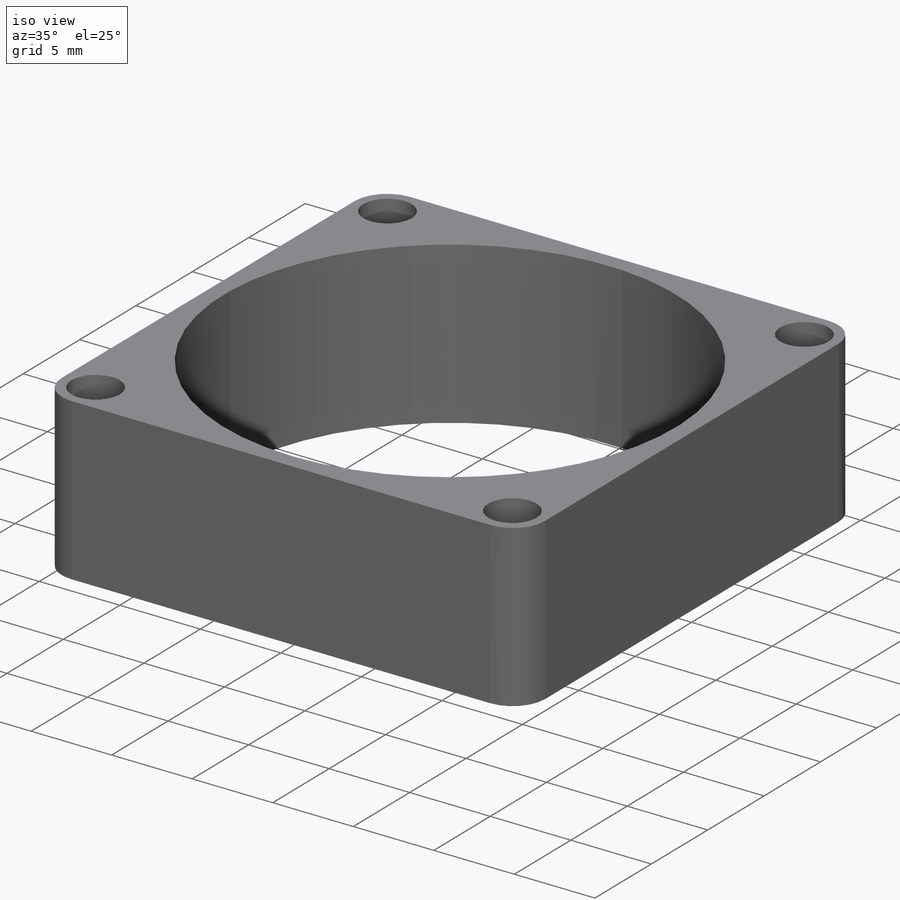
[diagram: iso view]
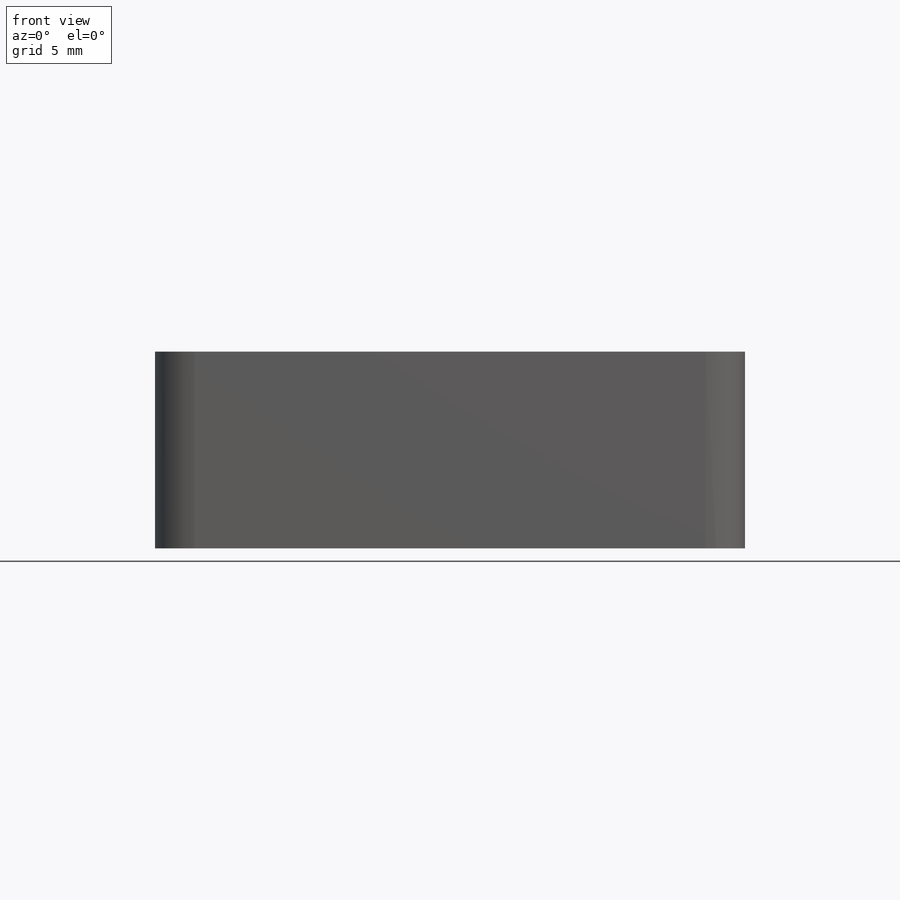
[diagram: front view]
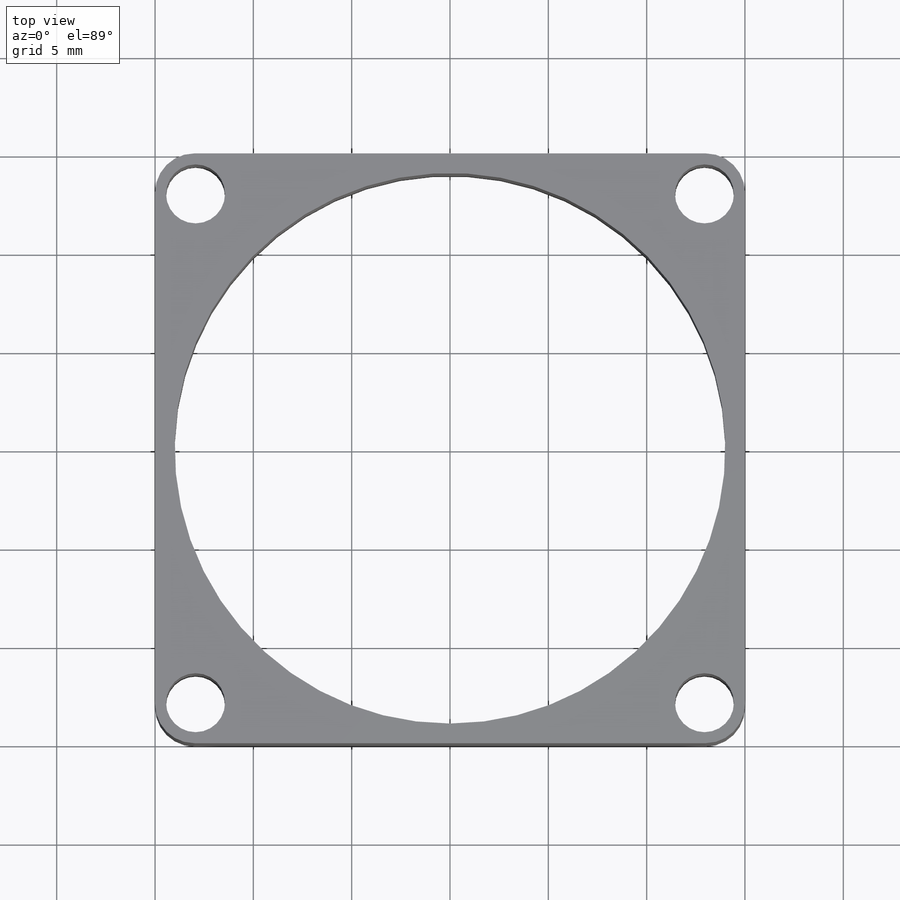
[diagram: top view]
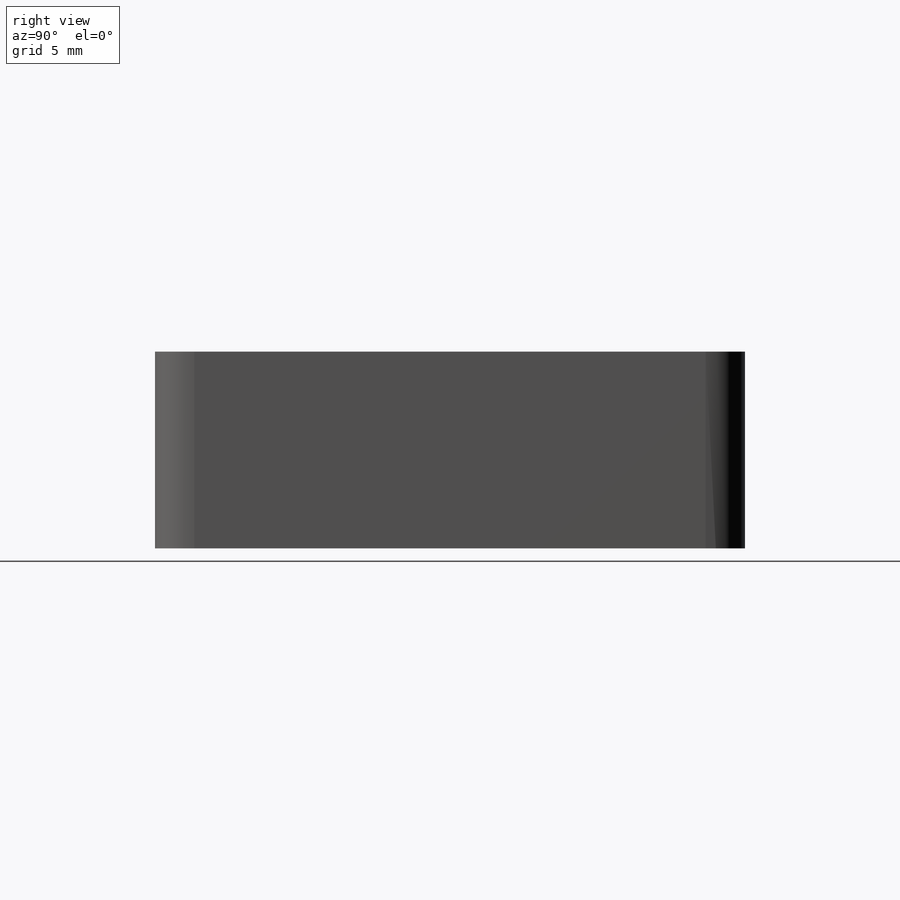
[diagram: right view]
SOLIDWORKS PART (.sldprt)
format: sldprt  version: not decoded by parser v0  size: 163,328 bytes
history: native  units: mm
features: sketch x4, plane x3, cut_extrude x3, fillet x2, material x1, extrude x1 (+8 scaffold rows collapsed)
feature tree (22):
  scaffold x8  (default folders/planes/origin — collapsed)
  material  "Materiale <non specificato>"
  plane  "Piano frontale"
  plane  "Piano superiore"
  plane  "Piano destro"
  sketch  "Schizzo1"  dims[D1=30.0mm D2=30.0mm]
  extrude  "Estrusione-Estrusione1"  Depth=10mm
  sketch  "Schizzo2"  dims[c1.D2=3.0mm c1.D3=30.0mm c1.D4=30.0mm c2.D3=3.0mm c2.D5=3.0mm c2.D6=3.0mm c2.D7=3.0mm c2.D1=2.914mm c2.D4=2.914mm]
  cut_extrude  "Taglio-Estrusione1"  [1 undecoded]
  cut_extrude  "Taglio-Estrusione2"  [1 undecoded]
  sketch  "Schizzo2<3>"
  fillet  "Raccordo2"  Radius=2mm
  fillet  "Raccordo3"  Radius=2mm
  sketch  "Schizzo3D1"  dims[D1=11.6128mm]
  cut_extrude  "Taglio-Estrusione4"  Depth=27mm
decode coverage: 7 of 10 modeling features carry decoded parameters
note: 2 parameter values undecoded
note: suppression state not decoded; provenance and decode notes live in map.json
